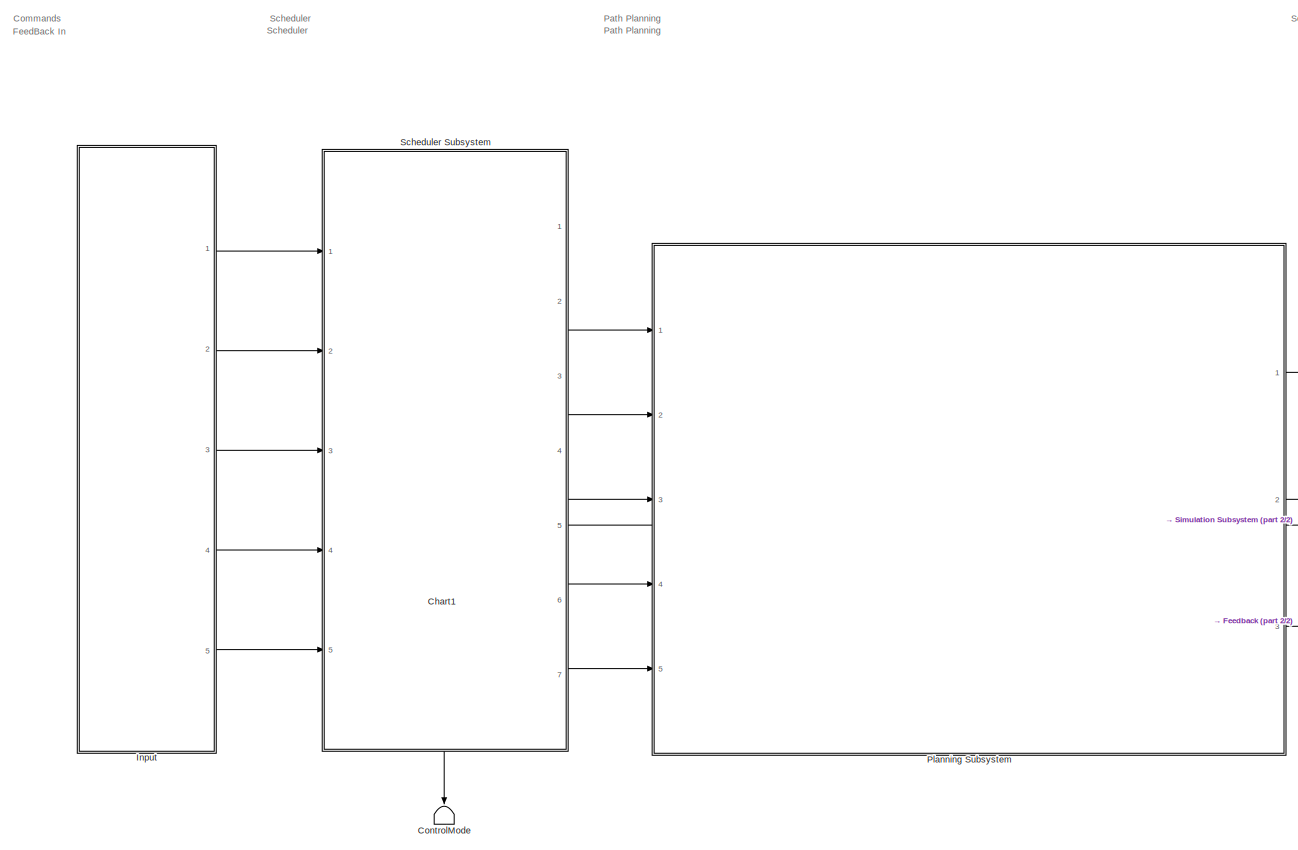
[diagram: root canvas - part 1/2, left side, full height]
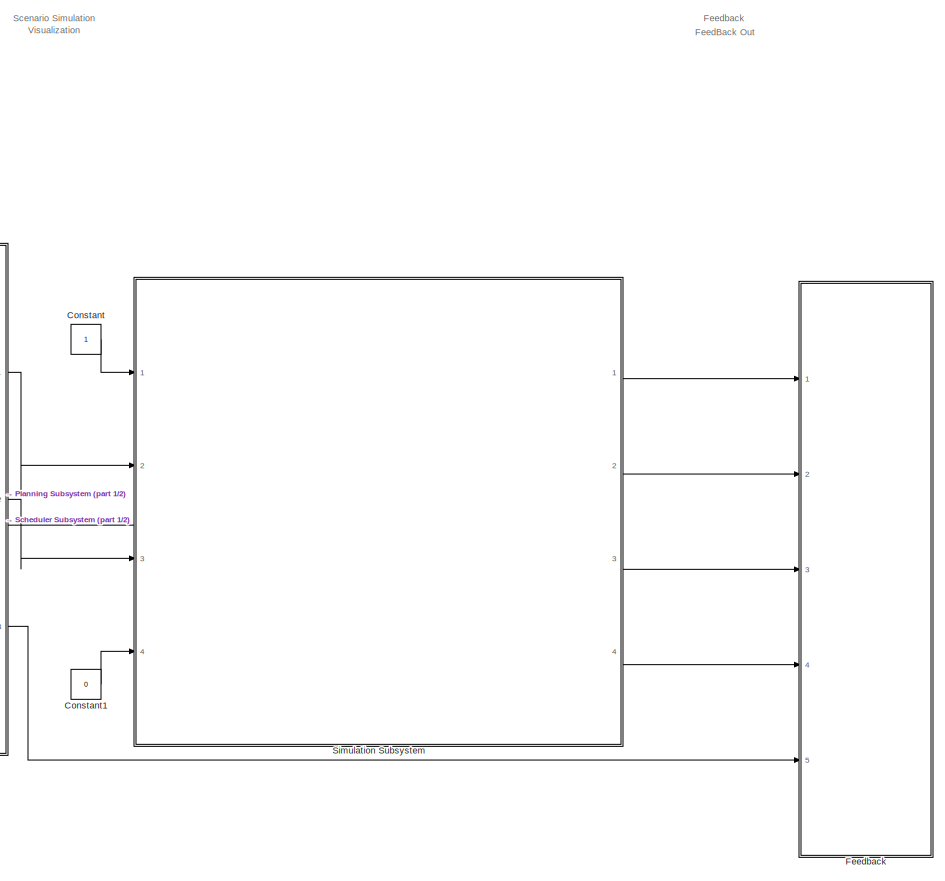
[diagram: root canvas - part 2/2, right side, full height]
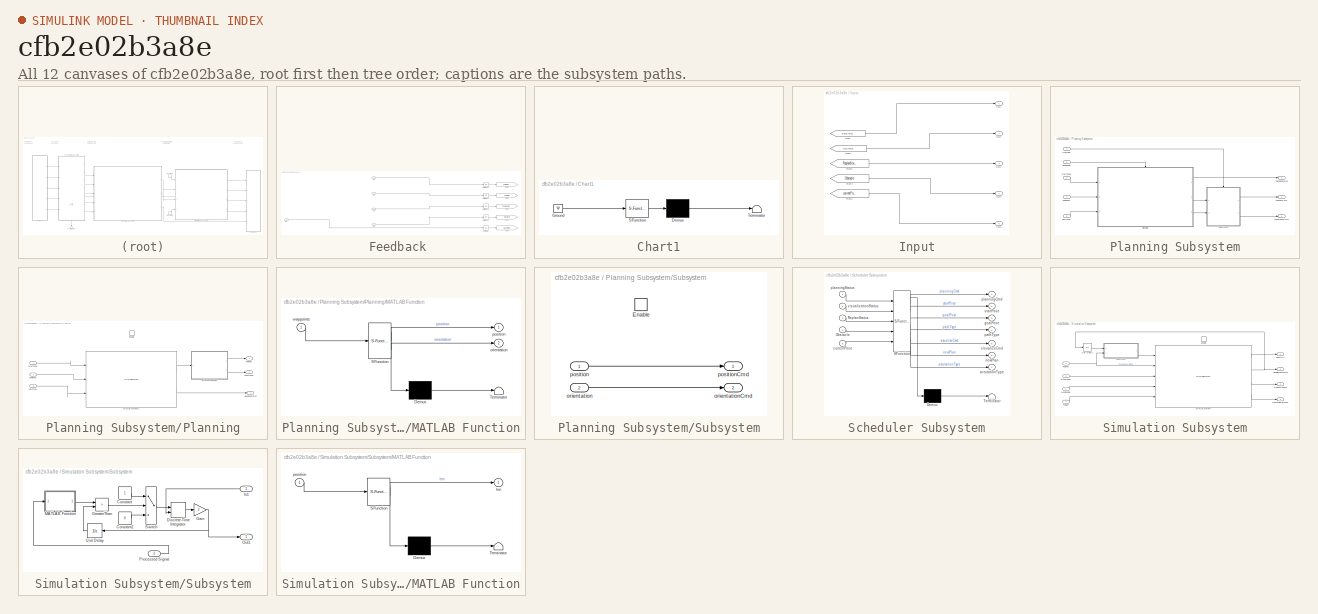
[diagram: thumbnail index - all 12 canvases of the model, root first then tree order]
MODEL slx_cfb2e02b3a8e
KIND model
CONFIG AbsTol = auto
CONFIG EnableMultiTasking = off
CONFIG FixedStep = 0.5
CONFIG MaxStep = auto
CONFIG MinStep = 0.1
CONFIG RelTol = 1e-3
CONFIG SampleTimeConstraint = Unconstrained
CONFIG SolverName = FixedStepAuto
CONFIG StartTime = 0.0
CONFIG StopTime = inf
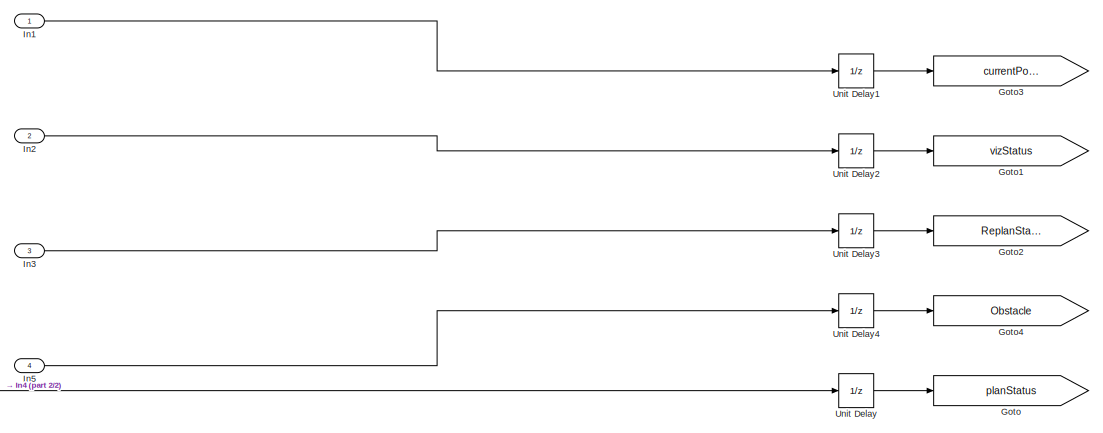
[diagram:  Feedback   - part 1/2, right side, full height]
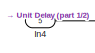
[diagram:  Feedback   - part 2/2, bottom left region]
BLOCK [SubSystem]  Feedback  
  Ports = [5]
  RequestExecContextInheritance = off
BLOCK [Goto]  Feedback  /Goto
  GotoTag = planStatus
  TagVisibility = global
BLOCK [Goto]  Feedback  /Goto1
  GotoTag = vizStatus
  TagVisibility = global
BLOCK [Goto]  Feedback  /Goto2
  GotoTag = ReplanStatus
  TagVisibility = global
BLOCK [Goto]  Feedback  /Goto3
  GotoTag = currentPose
  TagVisibility = global
BLOCK [Goto]  Feedback  /Goto4
  GotoTag = Obstacle
  TagVisibility = global
BLOCK [Inport]  Feedback  /In1
BLOCK [Inport]  Feedback  /In2
  Port = 2
BLOCK [Inport]  Feedback  /In3
  Port = 3
BLOCK [Inport]  Feedback  /In4
  Port = 5
BLOCK [Inport]  Feedback  /In5
  Port = 4
BLOCK [UnitDelay]  Feedback  /Unit Delay
  HasFrameUpgradeWarning = on
  SampleTime = -1
BLOCK [UnitDelay]  Feedback  /Unit Delay1
  HasFrameUpgradeWarning = on
  SampleTime = -1
BLOCK [UnitDelay]  Feedback  /Unit Delay2
  HasFrameUpgradeWarning = on
  SampleTime = -1
BLOCK [UnitDelay]  Feedback  /Unit Delay3
  HasFrameUpgradeWarning = on
  SampleTime = -1
BLOCK [UnitDelay]  Feedback  /Unit Delay4
  HasFrameUpgradeWarning = on
  InitialCondition = [0]
  SampleTime = -1
BLOCK [SubSystem] Chart1
  Commented = on
  ErrorFcn = Stateflow.Translate.translate
  PermitHierarchicalResolution = ExplicitOnly
  Ports = []
  RequestExecContextInheritance = off
  SFBlockType = Chart
  TreatAsAtomicUnit = on
BLOCK [Demux] Chart1/ Demux 
  Outputs = 1
  Ports = [1, 1]
BLOCK [Ground] Chart1/ Ground 
BLOCK [S-Function] Chart1/ SFunction 
  EnableBusSupport = on
  FunctionName = sf_sfun
  PortCounts = [1 1]
  Ports = [1, 1]
  SFcnIsStateOwnerBlock = off
  SFunctionDeploymentMode = off
  Tag = Stateflow S-Function 4
BLOCK [Terminator] Chart1/ Terminator 
BLOCK [Constant] Constant
BLOCK [Constant] Constant1
  Value = 0
BLOCK [Terminator] ControlMode
  NameLocation = left
BLOCK [SubSystem] Input
  Ports = [0, 5]
  RequestExecContextInheritance = off
BLOCK [From] Input/From
  GotoTag = planStatus
  TagVisibility = global
BLOCK [From] Input/From1
  GotoTag = vizStatus
  TagVisibility = global
BLOCK [From] Input/From2
  GotoTag = currentPose
  TagVisibility = global
BLOCK [From] Input/From3
  GotoTag = ReplanStatus
  TagVisibility = global
BLOCK [From] Input/From4
  GotoTag = Obstacle
  TagVisibility = global
BLOCK [Outport] Input/Out1
BLOCK [Outport] Input/Out2
  Port = 2
BLOCK [Outport] Input/Out3
  Port = 3
BLOCK [Outport] Input/Out4
  Port = 4
BLOCK [Outport] Input/Out5
  Port = 5
BLOCK [SubSystem] Planning Subsystem
  Ports = [5, 3]
  RequestExecContextInheritance = off
BLOCK [Inport] Planning Subsystem/ PlanEnable
  Port = 2
BLOCK [Inport] Planning Subsystem/NewPlan
BLOCK [SubSystem] Planning Subsystem/Planning
  Ports = [3, 3, 1]
  RequestExecContextInheritance = off
BLOCK [EnablePort] Planning Subsystem/Planning/Enable
  Ports = []
  PropagateVarSize = During execution
BLOCK [SubSystem] Planning Subsystem/Planning/MATLAB Function
  ErrorFcn = Stateflow.Translate.translate
  PermitHierarchicalResolution = ExplicitOnly
  Ports = [1, 2]
  RequestExecContextInheritance = off
  SFBlockType = MATLAB Function
  TreatAsAtomicUnit = on
BLOCK [Demux] Planning Subsystem/Planning/MATLAB Function/ Demux 
  Outputs = 1
  Ports = [1, 1]
BLOCK [S-Function] Planning Subsystem/Planning/MATLAB Function/ SFunction 
  EnableBusSupport = on
  FunctionName = sf_sfun
  PortCounts = [1 3]
  Ports = [1, 3]
  SFcnIsStateOwnerBlock = off
  SFunctionDeploymentMode = off
  Tag = Stateflow S-Function 2
BLOCK [Terminator] Planning Subsystem/Planning/MATLAB Function/ Terminator 
BLOCK [Outport] Planning Subsystem/Planning/MATLAB Function/orientation
  Port = 2
BLOCK [Outport] Planning Subsystem/Planning/MATLAB Function/position
BLOCK [Inport] Planning Subsystem/Planning/MATLAB Function/waypoints
BLOCK [MATLABSystem] Planning Subsystem/Planning/MATLAB System1
  MaskDisplay = disp('auvPathPlanner_MultiMode');\nport_label('input',1,'startPose');\nport_label('input',2,'goalPose');\nport_label('input',3,'pathType');\nport_label('output',1,'waypoints');\nport_label('output',2,'planningStatus');
  MaskType = auvPathPlanner_MultiMode
  Ports = [3, 2]
  SimulateUsing = Interpreted execution
  System = auvPathPlanner_MultiMode
  airSpeed = 8
  bounds = [ -250, 250; -250, 250; -250, 250; -pi, pi ]
  bouyCoverage = 300
  bouyPostions = [ -150, 150, -150, -150, 150, 0 ]
  flightPathAngleLimit = [ -0.1, 0.1 ]
  maxRollAngle = pi/6
  occMap = UUVSceneLowResMap3.mat
  searchCoordinates = [ 400, 400 ]
  searchFOV = 10
BLOCK [Inport] Planning Subsystem/Planning/goalPose
  Port = 2
BLOCK [Outport] Planning Subsystem/Planning/orientation
  Port = 3
BLOCK [Inport] Planning Subsystem/Planning/pathType
  Port = 3
BLOCK [Outport] Planning Subsystem/Planning/planningStatus
BLOCK [Outport] Planning Subsystem/Planning/position
  Port = 2
BLOCK [Inport] Planning Subsystem/Planning/startPose
BLOCK [SubSystem] Planning Subsystem/Subsystem
  Ports = [2, 2, 1]
  RequestExecContextInheritance = off
BLOCK [EnablePort] Planning Subsystem/Subsystem/Enable
  Ports = []
BLOCK [Inport] Planning Subsystem/Subsystem/orientation
  Port = 2
BLOCK [Outport] Planning Subsystem/Subsystem/orientationCmd
  Port = 2
BLOCK [Inport] Planning Subsystem/Subsystem/position
BLOCK [Outport] Planning Subsystem/Subsystem/positionCmd
BLOCK [Inport] Planning Subsystem/goalPose
  Port = 4
BLOCK [Outport] Planning Subsystem/orientationCmd
  Port = 2
BLOCK [Inport] Planning Subsystem/pathType
  Port = 5
BLOCK [Outport] Planning Subsystem/planningStatus
  Port = 3
BLOCK [Outport] Planning Subsystem/positionCmd
BLOCK [Inport] Planning Subsystem/startPose
  Port = 3
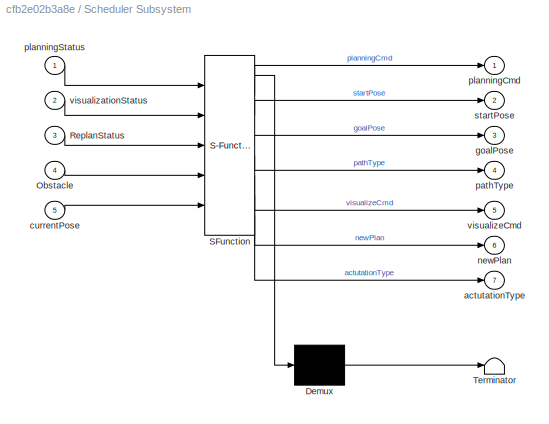
BLOCK [SubSystem] Scheduler Subsystem
  ErrorFcn = Stateflow.Translate.translate
  PermitHierarchicalResolution = ExplicitOnly
  PortSchema = {"entries":[{"content":{"sides":[{"content":{"connectorIds":["In1","In2","In3","In4","In5"]},"type":"ConnectorPlacement.EquallySpacedRectSide","uuid":"1bd6ddfe-5f8a-4931-8a8b-c6c0dc399580"},{"content":{"connectorIds":["Out5","Out6","Out1","Out2","Out3","Out4"],"side":"RIGHT"},"type":"ConnectorPlacement.EquallySpacedRectSide","uuid":"6c4632f4-be38-4d28-9a15-6462af5cd566"},{"content":{"connectorIds"...<+451ch>
  Ports = [5, 7]
  RequestExecContextInheritance = off
  SFBlockType = Chart
  TreatAsAtomicUnit = on
BLOCK [Demux] Scheduler Subsystem/ Demux 
  Outputs = 1
  Ports = [1, 1]
BLOCK [S-Function] Scheduler Subsystem/ SFunction 
  EnableBusSupport = on
  FunctionName = sf_sfun
  PortCounts = [5 8]
  Ports = [5, 8]
  SFcnIsStateOwnerBlock = off
  SFunctionDeploymentMode = off
  Tag = Stateflow S-Function 3
BLOCK [Terminator] Scheduler Subsystem/ Terminator 
BLOCK [Inport] Scheduler Subsystem/Obstacle
  Port = 4
BLOCK [Inport] Scheduler Subsystem/ReplanStatus
  Port = 3
BLOCK [Outport] Scheduler Subsystem/actutationType
  Port = 7
BLOCK [Inport] Scheduler Subsystem/currentPose
  Port = 5
BLOCK [Outport] Scheduler Subsystem/goalPose
  Port = 3
BLOCK [Outport] Scheduler Subsystem/newPlan
  Port = 6
BLOCK [Outport] Scheduler Subsystem/pathType
  Port = 4
BLOCK [Outport] Scheduler Subsystem/planningCmd
BLOCK [Inport] Scheduler Subsystem/planningStatus
BLOCK [Outport] Scheduler Subsystem/startPose
  Port = 2
BLOCK [Inport] Scheduler Subsystem/visualizationStatus
  Port = 2
BLOCK [Outport] Scheduler Subsystem/visualizeCmd
  Port = 5
BLOCK [SubSystem] Simulation Subsystem
  Ports = [4, 4, 1]
  RequestExecContextInheritance = off
BLOCK [EnablePort] Simulation Subsystem/Enable
  Ports = []
  PropagateVarSize = During execution
BLOCK [MATLABSystem] Simulation Subsystem/MATLAB System
  MaskDisplay = disp('auvScenarioHillsSimulation_MultiMode');\nport_label('input',1,'counter');\nport_label('input',2,'position');\nport_label('input',3,'orientation');\nport_label('input',4,'mapEnable');\nport_label('input',5,'trigger');\nport_label('output',1,'poseUUV');\nport_label('output',2,'VisualizationStatus');\nport_label('output',3,'ReplanRequest');\nport_label('output',4,'Obstacle');
  MaskType = auvScenarioHillsSimulation_MultiMode
  PitchAccuracy = 0.2
  Ports = [5, 4]
  PositionAccuracy = 1
  RollAccuracy = 0.2
  System = auvScenarioHillsSimulation_MultiMode
  VelocityAccuracy = 0.05
  YawAccuracy = 0.2
BLOCK [Inport] Simulation Subsystem/MapEnable
BLOCK [Outport] Simulation Subsystem/ObstacleDistance
  Port = 4
BLOCK [Inport] Simulation Subsystem/Orientation
  Port = 3
BLOCK [Inport] Simulation Subsystem/Position
  Port = 2
BLOCK [Outport] Simulation Subsystem/ReplanRequest
  Port = 3
BLOCK [SubSystem] Simulation Subsystem/Subsystem
  Ports = [2, 1]
  RequestExecContextInheritance = off
BLOCK [Constant] Simulation Subsystem/Subsystem/Constant
BLOCK [Constant] Simulation Subsystem/Subsystem/Constant1
  Value = 0
BLOCK [DiscreteIntegrator] Simulation Subsystem/Subsystem/Discrete-Time Integrator
  ExternalReset = rising
  ICPrevOutput = DiscIntNeverNeededParam
  ICPrevScaledInput = DiscIntNeverNeededParam
  InitialConditionSetting = Auto
  Ports = [2, 1]
  SampleTime = -1
BLOCK [Gain] Simulation Subsystem/Subsystem/Gain
  Gain = 2
BLOCK [RelationalOperator] Simulation Subsystem/Subsystem/GreaterThan
  InputSameDT = off
  Operator = >
  OutDataTypeStr = boolean
  Ports = [2, 1]
  RndMeth = Simplest
BLOCK [Inport] Simulation Subsystem/Subsystem/In1
BLOCK [SubSystem] Simulation Subsystem/Subsystem/MATLAB Function
  ErrorFcn = Stateflow.Translate.translate
  PermitHierarchicalResolution = ExplicitOnly
  Ports = [1, 1]
  RequestExecContextInheritance = off
  SFBlockType = MATLAB Function
  TreatAsAtomicUnit = on
BLOCK [Demux] Simulation Subsystem/Subsystem/MATLAB Function/ Demux 
  Outputs = 1
  Ports = [1, 1]
BLOCK [S-Function] Simulation Subsystem/Subsystem/MATLAB Function/ SFunction 
  EnableBusSupport = on
  FunctionName = sf_sfun
  PortCounts = [1 2]
  Ports = [1, 2]
  SFcnIsStateOwnerBlock = off
  SFunctionDeploymentMode = off
  Tag = Stateflow S-Function 1
BLOCK [Terminator] Simulation Subsystem/Subsystem/MATLAB Function/ Terminator 
BLOCK [Outport] Simulation Subsystem/Subsystem/MATLAB Function/len
BLOCK [Inport] Simulation Subsystem/Subsystem/MATLAB Function/position
BLOCK [Outport] Simulation Subsystem/Subsystem/Out1
BLOCK [Inport] Simulation Subsystem/Subsystem/Processed Signal
  Port = 2
BLOCK [Switch] Simulation Subsystem/Subsystem/Switch
  Criteria = u2 > Threshold
  InputSameDT = off
  SaturateOnIntegerOverflow = off
BLOCK [UnitDelay] Simulation Subsystem/Subsystem/Unit Delay
  HasFrameUpgradeWarning = on
  NameLocation = top
  SampleTime = -1
BLOCK [Inport] Simulation Subsystem/Trigger
  Port = 4
BLOCK [UnitDelay] Simulation Subsystem/Unit Delay1
  HasFrameUpgradeWarning = on
  SampleTime = -1
BLOCK [Outport] Simulation Subsystem/VisualizationStatus
  Port = 2
BLOCK [Outport] Simulation Subsystem/poseAUV
ANNOTATION (root): Commands
ANNOTATION (root): Feedback
ANNOTATION (root): Path Planning
ANNOTATION (root): Scenario Simulation
ANNOTATION (root): Scheduler
ANNOTATION (root): FeedBack In
ANNOTATION (root): FeedBack Out
ANNOTATION (root): Visualization
LINE  Feedback  /In1:1 ->  Feedback  /Unit Delay1:1
LINE  Feedback  /In2:1 ->  Feedback  /Unit Delay2:1
LINE  Feedback  /In3:1 ->  Feedback  /Unit Delay3:1
LINE  Feedback  /In4:1 ->  Feedback  /Unit Delay:1
LINE  Feedback  /In5:1 ->  Feedback  /Unit Delay4:1
LINE  Feedback  /Unit Delay1:1 ->  Feedback  /Goto3:1
LINE  Feedback  /Unit Delay2:1 ->  Feedback  /Goto1:1
LINE  Feedback  /Unit Delay3:1 ->  Feedback  /Goto2:1
LINE  Feedback  /Unit Delay4:1 ->  Feedback  /Goto4:1
LINE  Feedback  /Unit Delay:1 ->  Feedback  /Goto:1
LINE Constant1:1 -> Simulation Subsystem:4
LINE Constant:1 -> Simulation Subsystem:1
LINE Input/From1:1 -> Input/Out2:1
LINE Input/From2:1 -> Input/Out5:1
LINE Input/From3:1 -> Input/Out3:1
LINE Input/From4:1 -> Input/Out4:1
LINE Input/From:1 -> Input/Out1:1
LINE Input:1 -> Scheduler Subsystem:1
LINE Input:2 -> Scheduler Subsystem:2
LINE Input:3 -> Scheduler Subsystem:3
LINE Input:4 -> Scheduler Subsystem:4
LINE Input:5 -> Scheduler Subsystem:5
LINE Planning Subsystem/ PlanEnable:1 -> Planning Subsystem/Planning:enable
LINE Planning Subsystem/NewPlan:1 -> Planning Subsystem/Subsystem:enable
LINE Planning Subsystem/Planning/MATLAB Function:1 -> Planning Subsystem/Planning/position:1
LINE Planning Subsystem/Planning/MATLAB Function:2 -> Planning Subsystem/Planning/orientation:1
LINE Planning Subsystem/Planning/MATLAB System1:1 -> Planning Subsystem/Planning/MATLAB Function:1
LINE Planning Subsystem/Planning/MATLAB System1:2 -> Planning Subsystem/Planning/planningStatus:1
LINE Planning Subsystem/Planning/goalPose:1 -> Planning Subsystem/Planning/MATLAB System1:2
LINE Planning Subsystem/Planning/pathType:1 -> Planning Subsystem/Planning/MATLAB System1:3
LINE Planning Subsystem/Planning/startPose:1 -> Planning Subsystem/Planning/MATLAB System1:1
LINE Planning Subsystem/Planning:1 -> Planning Subsystem/planningStatus:1
LINE Planning Subsystem/Planning:2 -> Planning Subsystem/Subsystem:1
LINE Planning Subsystem/Planning:3 -> Planning Subsystem/Subsystem:2
LINE Planning Subsystem/Subsystem/orientation:1 -> Planning Subsystem/Subsystem/orientationCmd:1
LINE Planning Subsystem/Subsystem/position:1 -> Planning Subsystem/Subsystem/positionCmd:1
LINE Planning Subsystem/Subsystem:1 -> Planning Subsystem/positionCmd:1
LINE Planning Subsystem/Subsystem:2 -> Planning Subsystem/orientationCmd:1
LINE Planning Subsystem/goalPose:1 -> Planning Subsystem/Planning:2
LINE Planning Subsystem/pathType:1 -> Planning Subsystem/Planning:3
LINE Planning Subsystem/startPose:1 -> Planning Subsystem/Planning:1
LINE Planning Subsystem:1 -> Simulation Subsystem:2
LINE Planning Subsystem:2 -> Simulation Subsystem:3
LINE Planning Subsystem:3 ->  Feedback  :5
LINE Scheduler Subsystem:1 -> Planning Subsystem:2
LINE Scheduler Subsystem:2 -> Planning Subsystem:3
LINE Scheduler Subsystem:3 -> Planning Subsystem:4
LINE Scheduler Subsystem:4 -> Planning Subsystem:5
LINE Scheduler Subsystem:5 -> Simulation Subsystem:enable
LINE Scheduler Subsystem:6 -> Planning Subsystem:1
LINE Scheduler Subsystem:7 -> ControlMode:1
LINE Simulation Subsystem/MATLAB System:1 -> Simulation Subsystem/poseAUV:1
NET Simulation Subsystem/MATLAB System:2 -> Simulation Subsystem/Unit Delay1:1, Simulation Subsystem/VisualizationStatus:1
LINE Simulation Subsystem/MATLAB System:3 -> Simulation Subsystem/ReplanRequest:1
LINE Simulation Subsystem/MATLAB System:4 -> Simulation Subsystem/ObstacleDistance:1
LINE Simulation Subsystem/MapEnable:1 -> Simulation Subsystem/MATLAB System:4
LINE Simulation Subsystem/Orientation:1 -> Simulation Subsystem/MATLAB System:3
NET Simulation Subsystem/Position:1 -> Simulation Subsystem/MATLAB System:2, Simulation Subsystem/Subsystem:2
LINE Simulation Subsystem/Subsystem/Constant1:1 -> Simulation Subsystem/Subsystem/Switch:3
LINE Simulation Subsystem/Subsystem/Constant:1 -> Simulation Subsystem/Subsystem/Switch:1
LINE Simulation Subsystem/Subsystem/Discrete-Time Integrator:1 -> Simulation Subsystem/Subsystem/Gain:1
NET Simulation Subsystem/Subsystem/Gain:1 -> Simulation Subsystem/Subsystem/Out1:1, Simulation Subsystem/Subsystem/Unit Delay:1
LINE Simulation Subsystem/Subsystem/GreaterThan:1 -> Simulation Subsystem/Subsystem/Switch:2
LINE Simulation Subsystem/Subsystem/In1:1 -> Simulation Subsystem/Subsystem/Discrete-Time Integrator:2
LINE Simulation Subsystem/Subsystem/MATLAB Function:1 -> Simulation Subsystem/Subsystem/GreaterThan:1
LINE Simulation Subsystem/Subsystem/Processed Signal:1 -> Simulation Subsystem/Subsystem/MATLAB Function:1
LINE Simulation Subsystem/Subsystem/Switch:1 -> Simulation Subsystem/Subsystem/Discrete-Time Integrator:1
LINE Simulation Subsystem/Subsystem/Unit Delay:1 -> Simulation Subsystem/Subsystem/GreaterThan:2
LINE Simulation Subsystem/Subsystem:1 -> Simulation Subsystem/MATLAB System:1
LINE Simulation Subsystem/Trigger:1 -> Simulation Subsystem/MATLAB System:5
LINE Simulation Subsystem/Unit Delay1:1 -> Simulation Subsystem/Subsystem:1
LINE Simulation Subsystem:1 ->  Feedback  :1
LINE Simulation Subsystem:2 ->  Feedback  :2
LINE Simulation Subsystem:3 ->  Feedback  :3
LINE Simulation Subsystem:4 ->  Feedback  :4
note: NET lines group one-source signal fan-out (src -> all destinations, sorted); 1:1 wires keep LINE
CHART Chart1 states=11 transitions=26
  STATE_LABEL 'Dive'
  STATE_LABEL 'Simulation'
  STATE_LABEL 'Dive'
  STATE_LABEL 'Survey'
  STATE_LABEL 'Search'
  STATE_LABEL 'Inspect'
  STATE_LABEL 'Resurface'
  STATE_LABEL 'startDive'
  STATE_LABEL 'diveCompleted'
  STATE_LABEL 'startSurvey'
  STATE_LABEL 'blackBoxNotDetected'
  STATE_LABEL 'blackBoxDetected'
  STATE_LABEL 'startSearch'
  STATE_LABEL 'obstacleDetected'
  STATE_LABEL 'startInspection'
  STATE_LABEL 'startResurface'
  STATE_LABEL 'blackBoxDetected'
  STATE_LABEL 'Dive'
  STATE_LABEL 'Survey'
  STATE_LABEL 'Search'
  STATE_LABEL 'Inspect'
  STATE_LABEL 'Resurface'
  STATE_LABEL 'Survey'
  STATE_LABEL 'Search'
  STATE_LABEL 'Inspect'
  STATE_LABEL 'Resurface'
CHART Simulation Subsystem/Subsystem/MATLAB Function states=1 transitions=1
  STATE_LABEL 'eML_blk_kernel()'
  STATE_LABEL 'SCRIPT:\nfunction len = fcn(position)\n\nlen= length(position);\n\nend\n\n'
CHART Planning Subsystem/Planning/MATLAB Function states=1 transitions=1
  STATE_LABEL 'eML_blk_kernel()'
  STATE_LABEL 'SCRIPT:\nfunction [position,orientation] = convertWaypoints(waypoints)\ncoder.extrinsic(\'plot3\',\'load\'); \n\n% figure\n% plot3(waypoints(:,1),...\n%     waypoints(:,2), ...\n%     waypoints(:,3), "LineWidth",2,"Color","r");\n\nposition = waypoints(:,1:3);\n\n% if (size(waypoints,2)==4)\n%orientation = [waypoints(:,4) zeros(939,1) zeros(939,1)];\n% else\n orientation = [waypoints(:,4) zeros(length(waypoints(:,4)...<+45ch>'
CHART Scheduler Subsystem states=8 transitions=10
  STATE_LABEL 'Dive\nen:\nnewPlan = 1;\nactutationType = 1;\nplanningCmd = 1;\nvisualizeCmd = 0;\nstartPose = [-150,-150,150,0];\ngoalPose = [-150,-150,80,0];\npathType = 3;\n'
  STATE_LABEL 'Visuallize1\nen:\nnewPlan = 0;\nplanningCmd = 0;\nvisualizeCmd = 1;\n'
  STATE_LABEL 'Search\nen:\nnewPlan = 1;\nplanningCmd = 1;\nvisualizeCmd = 0;\nstartPose =  [-150,-150,80,0];\ngoalPose =[0,0,0,0]\npathType = 1;\n'
  STATE_LABEL 'Visuallize2\nen:\nnewPlan = 0;\nplanningCmd = 0;\nvisualizeCmd = 1;\n'
  STATE_LABEL 'Survey\nen:\nnewPlan = 1;\nplanningCmd = 1;\nvisualizeCmd = 0;\nstartPose =[-17,20,50,0];\ngoalPose =[-17,20,20,0]\npathType = 3;\n'
  STATE_LABEL 'Visuallize3\nen:\nnewPlan = 0;\nplanningCmd = 0;\nvisualizeCmd = 1;\n'
  STATE_LABEL 'Inspect\nen:\nplanningCmd = 1;\nstartPose = Obstacle(1,2:5)\ngoalPose =[-17,20,20,0];\npathType = 2;\ndu:\nplanningCmd = 0;\n'
  STATE_LABEL 'Visuallize4\nen:\nnewPlan = 1;\nplanningCmd = 0;\nvisualizeCmd = 1;\nactutationType = 2;'
CHART  states=0 transitions=0
CHART  states=0 transitions=0
CHART  states=0 transitions=0
CHART  states=0 transitions=0
